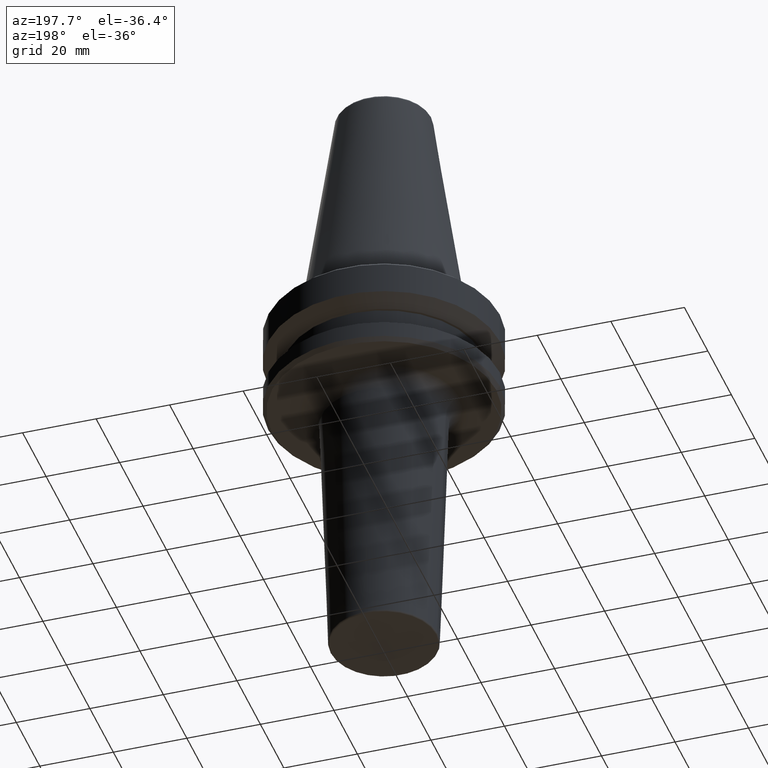
[diagram: clean part render]
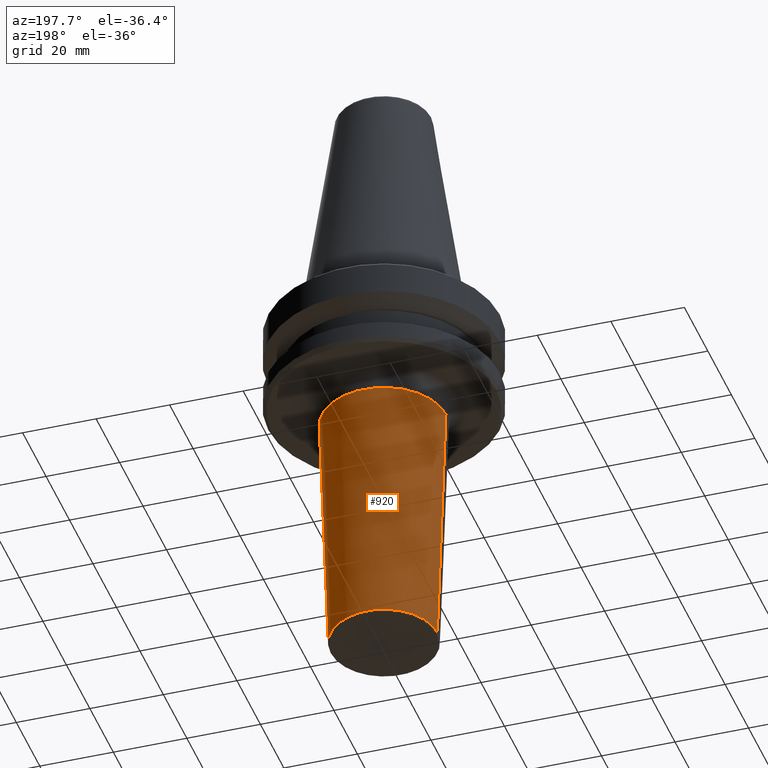
[diagram: same view with one face highlighted and labeled with its STEP entity id]
A machine part, auxiliary view. The second image highlights one B-rep face of the part: STEP entity #920.
In plain terms, the highlighted conical surface has half-angle 1.909 deg.
Its self-contained STEP definition (entity closure, byte-faithful):
#44 = CARTESIAN_POINT ( 'NONE',  ( 16.83888580503877800, 0.0000000000000000000, -97.23342584884484600 ) ) ;
#56 = CARTESIAN_POINT ( 'NONE',  ( -14.51611141949611500, 1.777710938595226200E-015, -166.9166574151246300 ) ) ;
#178 = CONICAL_SURFACE ( 'NONE', #391, 16.83888580503877800, 0.03332099587824720300 ) ;
#230 = DIRECTION ( 'NONE',  ( -0.0000000000000000000, -0.0000000000000000000, 1.000000000000000000 ) ) ;
#255 = ORIENTED_EDGE ( 'NONE', *, *, #307, .T. ) ;
#282 = EDGE_CURVE ( 'NONE', #652, #492, #617, .T. ) ;
#283 = DIRECTION ( 'NONE',  ( 0.03331483023263848800, 0.0000000000000000000, 0.9994449069791543300 ) ) ;
#291 = VERTEX_POINT ( 'NONE', #947 ) ;
#307 = EDGE_CURVE ( 'NONE', #291, #1037, #406, .T. ) ;
#323 = DIRECTION ( 'NONE',  ( -0.0000000000000000000, -0.0000000000000000000, 1.000000000000000000 ) ) ;
#338 = LINE ( 'NONE', #516, #948 ) ;
#391 = AXIS2_PLACEMENT_3D ( 'NONE', #681, #596, #915 ) ;
#406 = CIRCLE ( 'NONE', #839, 14.51611141949611600 ) ;
#422 = ORIENTED_EDGE ( 'NONE', *, *, #932, .T. ) ;
#444 = DIRECTION ( 'NONE',  ( -0.03331483023263848800, 4.079890020853818900E-018, 0.9994449069791543300 ) ) ;
#447 = FACE_OUTER_BOUND ( 'NONE', #897, .T. ) ;
#459 = CARTESIAN_POINT ( 'NONE',  ( -16.83888580503877800, 2.368160511798890900E-015, -97.23342584884484600 ) ) ;
#492 = VERTEX_POINT ( 'NONE', #459 ) ;
#516 = CARTESIAN_POINT ( 'NONE',  ( 16.83888580503877800, 0.0000000000000000000, -97.23342584884484600 ) ) ;
#596 = DIRECTION ( 'NONE',  ( -0.0000000000000000000, -0.0000000000000000000, 1.000000000000000000 ) ) ;
#617 = CIRCLE ( 'NONE', #727, 16.83888580503877800 ) ;
#652 = VERTEX_POINT ( 'NONE', #44 ) ;
#659 = ORIENTED_EDGE ( 'NONE', *, *, #282, .F. ) ;
#681 = CARTESIAN_POINT ( 'NONE',  ( 0.0000000000000000000, 0.0000000000000000000, -97.23342584884484600 ) ) ;
#712 = CARTESIAN_POINT ( 'NONE',  ( 0.0000000000000000000, 0.0000000000000000000, -97.23342584884484600 ) ) ;
#727 = AXIS2_PLACEMENT_3D ( 'NONE', #712, #230, #796 ) ;
#796 = DIRECTION ( 'NONE',  ( 1.000000000000000000, 0.0000000000000000000, 0.0000000000000000000 ) ) ;
#804 = CARTESIAN_POINT ( 'NONE',  ( 0.0000000000000000000, 0.0000000000000000000, -166.9166574151246300 ) ) ;
#830 = VECTOR ( 'NONE', #444, 1000.000000000000000 ) ;
#839 = AXIS2_PLACEMENT_3D ( 'NONE', #804, #323, #885 ) ;
#878 = ORIENTED_EDGE ( 'NONE', *, *, #1044, .F. ) ;
#885 = DIRECTION ( 'NONE',  ( 1.000000000000000000, 0.0000000000000000000, 0.0000000000000000000 ) ) ;
#897 = EDGE_LOOP ( 'NONE', ( #255, #422, #659, #878 ) ) ;
#915 = DIRECTION ( 'NONE',  ( 1.000000000000000000, 0.0000000000000000000, 0.0000000000000000000 ) ) ;
#920 = ADVANCED_FACE ( 'NONE', ( #447 ), #178, .T. ) ;
#932 = EDGE_CURVE ( 'NONE', #1037, #492, #1035, .T. ) ;
#947 = CARTESIAN_POINT ( 'NONE',  ( 14.51611141949611500, 0.0000000000000000000, -166.9166574151246300 ) ) ;
#948 = VECTOR ( 'NONE', #283, 1000.000000000000000 ) ;
#1007 = CARTESIAN_POINT ( 'NONE',  ( -16.83888580503877800, 2.062168760234853700E-015, -97.23342584884484600 ) ) ;
#1035 = LINE ( 'NONE', #1007, #830 ) ;
#1037 = VERTEX_POINT ( 'NONE', #56 ) ;
#1044 = EDGE_CURVE ( 'NONE', #291, #652, #338, .T. ) ;